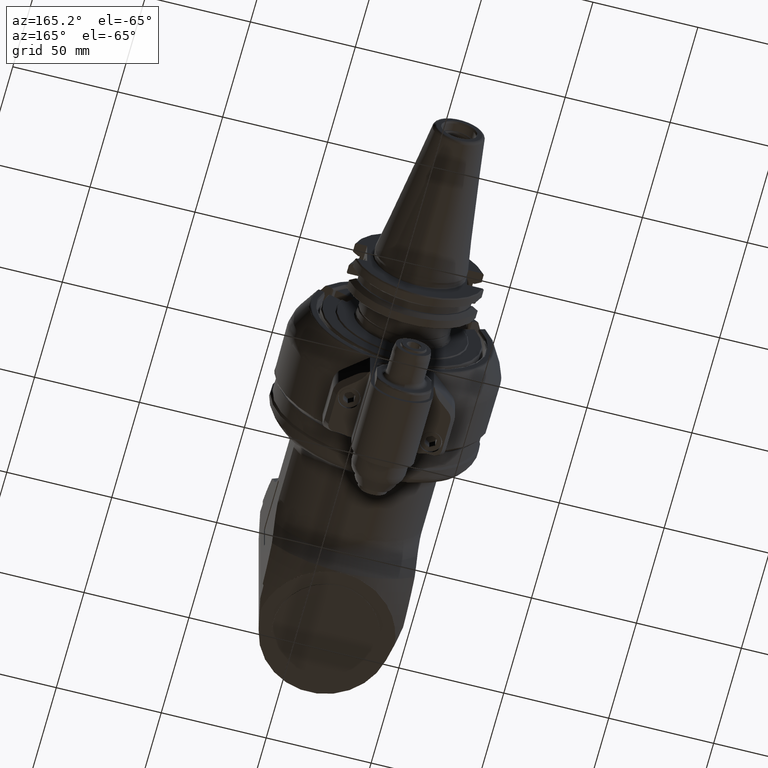
[diagram: clean part render]
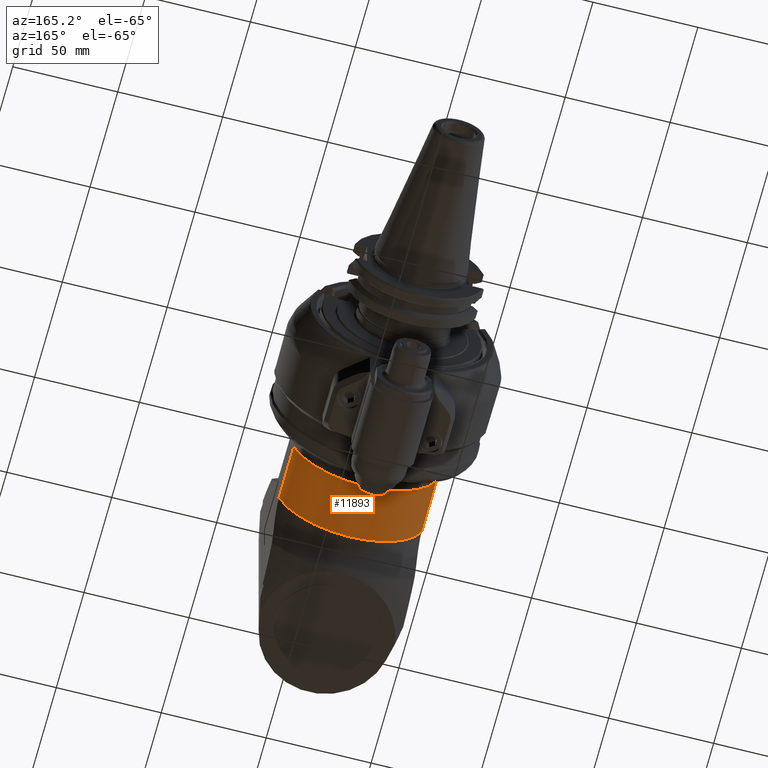
[diagram: same view with one face highlighted and labeled with its STEP entity id]
A machine part, auxiliary view. The second image highlights one B-rep face of the part: STEP entity #11893.
In plain terms, the highlighted cylindrical surface (partial cylindrical patch) has radius 36 mm, axis along (-0, 1, 0).
Its self-contained STEP definition (entity closure, byte-faithful):
#845=LINE('',#17446,#1732);
#859=LINE('',#17707,#1746);
#1732=VECTOR('',#13971,26.67897826015);
#1746=VECTOR('',#14043,26.67897826021);
#2606=CYLINDRICAL_SURFACE('',#12710,36.);
#2792=FACE_OUTER_BOUND('',#3462,.T.);
#3462=EDGE_LOOP('',(#8084,#8085,#8086,#8087));
#4221=CIRCLE('',#12709,36.);
#4222=CIRCLE('',#12711,36.);
#4800=VERTEX_POINT('',#17432);
#4801=VERTEX_POINT('',#17445);
#4861=VERTEX_POINT('',#17695);
#4862=VERTEX_POINT('',#17706);
#6088=EDGE_CURVE('',#4801,#4800,#845,.T.);
#6161=EDGE_CURVE('',#4862,#4861,#859,.T.);
#6183=EDGE_CURVE('',#4862,#4800,#4221,.T.);
#6184=EDGE_CURVE('',#4801,#4861,#4222,.T.);
#8084=ORIENTED_EDGE('',*,*,#6184,.F.);
#8085=ORIENTED_EDGE('',*,*,#6088,.T.);
#8086=ORIENTED_EDGE('',*,*,#6183,.F.);
#8087=ORIENTED_EDGE('',*,*,#6161,.T.);
#11893=ADVANCED_FACE('',(#2792),#2606,.T.);
#12709=AXIS2_PLACEMENT_3D('',#17821,#14072,#14073);
#12710=AXIS2_PLACEMENT_3D('',#17822,#14074,#14075);
#12711=AXIS2_PLACEMENT_3D('',#17823,#14076,#14077);
#13971=DIRECTION('',(-1.,0.,0.));
#14043=DIRECTION('',(1.,0.,0.));
#14072=DIRECTION('center_axis',(-1.,0.,0.));
#14073=DIRECTION('ref_axis',(0.,0.328671099061113,0.944444444444437));
#14074=DIRECTION('center_axis',(-1.,0.,0.));
#14075=DIRECTION('ref_axis',(0.,1.,1.22464679914735E-16));
#14076=DIRECTION('center_axis',(1.,0.,0.));
#14077=DIRECTION('ref_axis',(0.,1.,0.));
#17432=CARTESIAN_POINT('',(207.1879662404,11.8321595662,-34.));
#17445=CARTESIAN_POINT('',(233.8669445005,11.8321595662,-34.));
#17446=CARTESIAN_POINT('',(233.8669445005,11.8321595662,-34.));
#17695=CARTESIAN_POINT('',(233.8669445006,11.8321595662,34.));
#17706=CARTESIAN_POINT('',(207.1879662404,11.8321595662,34.));
#17707=CARTESIAN_POINT('',(207.1879662404,11.8321595662,34.));
#17821=CARTESIAN_POINT('Origin',(207.1879662404,0.,0.));
#17822=CARTESIAN_POINT('Origin',(217.7095440971,0.,0.));
#17823=CARTESIAN_POINT('Origin',(233.8669445005,0.,0.));